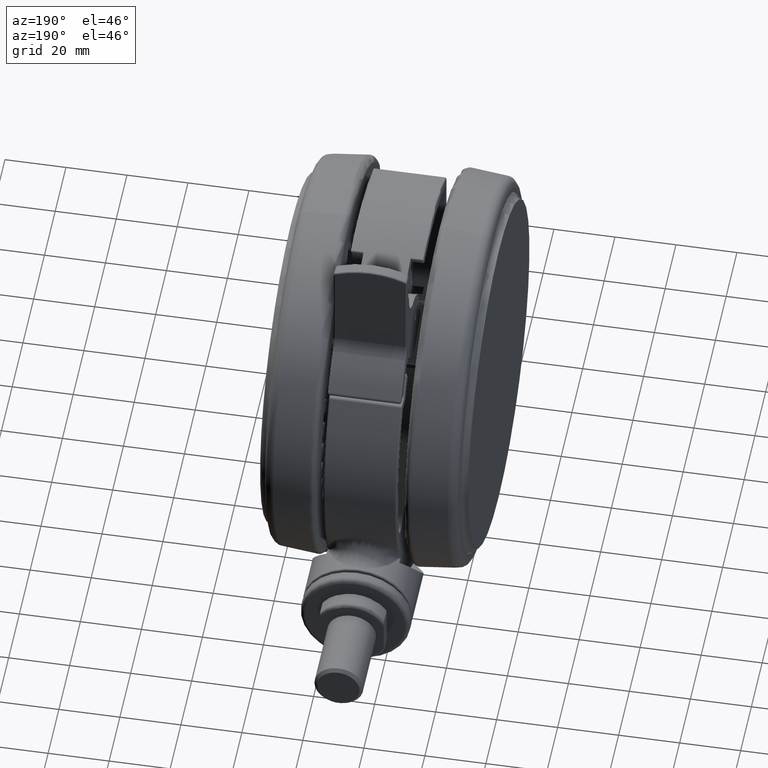
[diagram: clean part render]
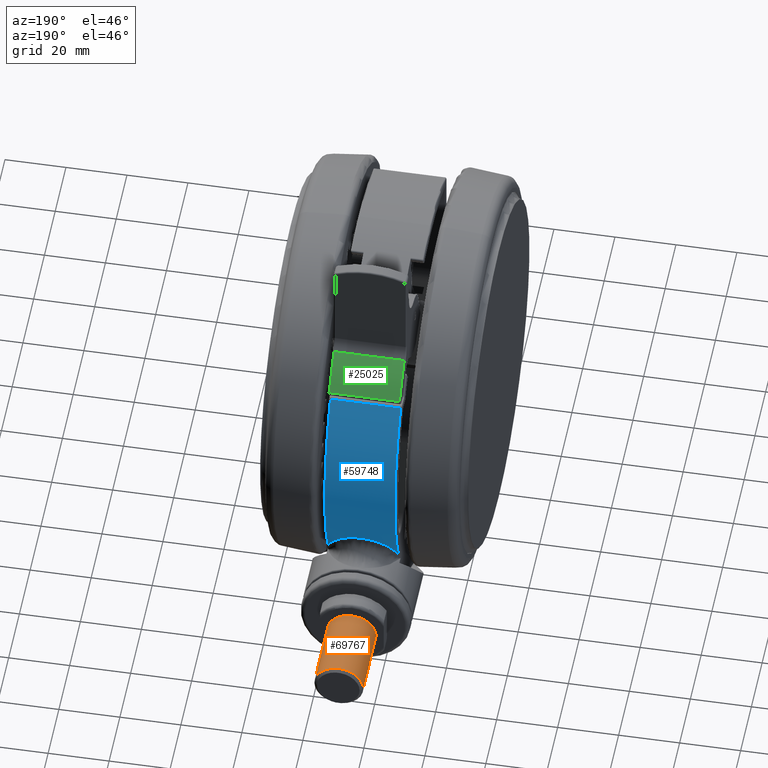
[diagram: same view with three faces highlighted in distinct colors, each labeled with its STEP entity id]
A machine part, auxiliary view with three faces highlighted in distinct colors.
Their STEP definitions:

[orange] entity #69767 — the highlighted cylindrical surface (edge-blend (fillet) strip) has radius 8 mm, axis along (0, 1, 0).
#951 = CARTESIAN_POINT ( 'NONE',  ( 45.00000000000000000, 79.99999999999998600, -42.10000000000006500 ) ) ;
#4167 = DIRECTION ( 'NONE',  ( -1.146315124338079900E-016, 1.000000000000000000, 0.0000000000000000000 ) ) ;
#7371 = EDGE_CURVE ( 'NONE', #54713, #21270, #38706, .T. ) ;
#9606 = VECTOR ( 'NONE', #63421, 1000.000000000000000 ) ;
#10160 = ORIENTED_EDGE ( 'NONE', *, *, #77631, .F. ) ;
#10475 = ORIENTED_EDGE ( 'NONE', *, *, #7371, .T. ) ;
#12645 = LINE ( 'NONE', #24308, #31342 ) ;
#14196 = CARTESIAN_POINT ( 'NONE',  ( 45.00000000000000000, 79.99999999999998600, -34.10000000000006500 ) ) ;
#16465 = AXIS2_PLACEMENT_3D ( 'NONE', #55629, #18010, #61985 ) ;
#16809 = CARTESIAN_POINT ( 'NONE',  ( 45.00000000000000000, 79.99999999999998600, -34.10000000000006500 ) ) ;
#18010 = DIRECTION ( 'NONE',  ( 1.146315124338079900E-016, -1.000000000000000000, 0.0000000000000000000 ) ) ;
#18689 = EDGE_CURVE ( 'NONE', #46795, #54713, #26293, .T. ) ;
#18965 = AXIS2_PLACEMENT_3D ( 'NONE', #16809, #4167, #79402 ) ;
#19462 = CARTESIAN_POINT ( 'NONE',  ( 45.00000000000000000, 79.99999999999998600, -26.10000000000006900 ) ) ;
#20493 = DIRECTION ( 'NONE',  ( 0.0000000000000000000, 0.0000000000000000000, 1.000000000000000000 ) ) ;
#21270 = VERTEX_POINT ( 'NONE', #61968 ) ;
#22998 = CARTESIAN_POINT ( 'NONE',  ( 45.00000000000000000, 79.99999999999998600, -26.10000000000006900 ) ) ;
#24308 = CARTESIAN_POINT ( 'NONE',  ( 45.00000000000000000, 79.99999999999998600, -42.10000000000006500 ) ) ;
#26293 = LINE ( 'NONE', #19462, #9606 ) ;
#26489 = CYLINDRICAL_SURFACE ( 'NONE', #18965, 8.000000000000000000 ) ;
#28938 = EDGE_CURVE ( 'NONE', #46795, #73681, #34399, .T. ) ;
#30073 = CARTESIAN_POINT ( 'NONE',  ( 45.00000000000000000, 104.0000000000000000, -26.10000000000006900 ) ) ;
#31342 = VECTOR ( 'NONE', #68212, 1000.000000000000000 ) ;
#31930 = ORIENTED_EDGE ( 'NONE', *, *, #28938, .F. ) ;
#34399 = CIRCLE ( 'NONE', #59120, 8.000000000000000000 ) ;
#38706 = CIRCLE ( 'NONE', #16465, 8.000000000000000000 ) ;
#41595 = EDGE_LOOP ( 'NONE', ( #31930, #60888, #10475, #10160 ) ) ;
#46795 = VERTEX_POINT ( 'NONE', #22998 ) ;
#49108 = FACE_OUTER_BOUND ( 'NONE', #41595, .T. ) ;
#54713 = VERTEX_POINT ( 'NONE', #30073 ) ;
#55629 = CARTESIAN_POINT ( 'NONE',  ( 45.00000000000000000, 104.0000000000000000, -34.10000000000006500 ) ) ;
#58141 = DIRECTION ( 'NONE',  ( 1.146315124338079900E-016, -1.000000000000000000, 0.0000000000000000000 ) ) ;
#59120 = AXIS2_PLACEMENT_3D ( 'NONE', #14196, #58141, #20493 ) ;
#60888 = ORIENTED_EDGE ( 'NONE', *, *, #18689, .T. ) ;
#61968 = CARTESIAN_POINT ( 'NONE',  ( 45.00000000000000000, 104.0000000000000000, -42.10000000000006500 ) ) ;
#61985 = DIRECTION ( 'NONE',  ( 0.0000000000000000000, 0.0000000000000000000, 1.000000000000000000 ) ) ;
#63421 = DIRECTION ( 'NONE',  ( -1.146315124338079900E-016, 1.000000000000000000, 0.0000000000000000000 ) ) ;
#68212 = DIRECTION ( 'NONE',  ( -1.146315124338079900E-016, 1.000000000000000000, 0.0000000000000000000 ) ) ;
#69767 = ADVANCED_FACE ( 'NONE', ( #49108 ), #26489, .T. ) ;
#73681 = VERTEX_POINT ( 'NONE', #951 ) ;
#77631 = EDGE_CURVE ( 'NONE', #73681, #21270, #12645, .T. ) ;
#79402 = DIRECTION ( 'NONE',  ( 0.0000000000000000000, 0.0000000000000000000, -1.000000000000000000 ) ) ;

[blue] entity #59748 — the highlighted cylindrical surface (partial cylindrical patch) has radius 65 mm, axis along (-1, 0, 0).
#58 = CARTESIAN_POINT ( 'NONE',  ( 22.25067191259084300, 61.07446460647479100, -26.13959871664137000 ) ) ;
#336 = CARTESIAN_POINT ( 'NONE',  ( 19.53446099107078700, 61.99526671427586400, -31.40211027222164500 ) ) ;
#609 = CARTESIAN_POINT ( 'NONE',  ( 20.17088575764760300, 61.79124011712932000, -38.72578671634456500 ) ) ;
#885 = CARTESIAN_POINT ( 'NONE',  ( 23.67213790501916600, 60.53632407365591200, -43.37910290245623900 ) ) ;
#1166 = CARTESIAN_POINT ( 'NONE',  ( 27.42267506145585200, 58.93218258227798100, -45.43470148881331000 ) ) ;
#1331 = CIRCLE ( 'NONE', #28591, 65.00000000000000000 ) ;
#6071 = FACE_OUTER_BOUND ( 'NONE', #24300, .T. ) ;
#6146 = CARTESIAN_POINT ( 'NONE',  ( 27.34814487594782800, 58.96676503255361000, -22.77986088566700600 ) ) ;
#6410 = CARTESIAN_POINT ( 'NONE',  ( 21.64952585980088200, 61.28873263384547000, -26.89637461909766400 ) ) ;
#6675 = CARTESIAN_POINT ( 'NONE',  ( 19.28304060778433600, 62.07398556647676500, -32.75484630788786700 ) ) ;
#6958 = CARTESIAN_POINT ( 'NONE',  ( 20.60295828151467000, 61.64858069595445800, -39.64227792800731000 ) ) ;
#7224 = CARTESIAN_POINT ( 'NONE',  ( 24.42173400849698300, 60.23835657775620700, -43.94026350348315900 ) ) ;
#7301 = CARTESIAN_POINT ( 'NONE',  ( -35.54687500000000000, 54.41892756876389800, -22.60000000000006900 ) ) ;
#7492 = CARTESIAN_POINT ( 'NONE',  ( 27.82032428552507900, 58.74565176112127300, -45.56163820931893600 ) ) ;
#7730 = DIRECTION ( 'NONE',  ( -1.000000000000000000, 0.0000000000000000000, 0.0000000000000000000 ) ) ;
#8426 = CARTESIAN_POINT ( 'NONE',  ( -35.54687500000000000, 54.41892756876389800, -45.60000000000007200 ) ) ;
#12474 = CARTESIAN_POINT ( 'NONE',  ( 26.89241669005522400, 59.17712756015789200, -22.93883237918613500 ) ) ;
#12751 = CARTESIAN_POINT ( 'NONE',  ( 21.16972210647392700, 61.45657141387963700, -27.56596694341793000 ) ) ;
#13013 = CARTESIAN_POINT ( 'NONE',  ( 19.22636675363504800, 62.09143920503182600, -34.78746132980300100 ) ) ;
#13279 = CARTESIAN_POINT ( 'NONE',  ( 21.10159326407777400, 61.47976129959460000, -40.50638821008343600 ) ) ;
#13552 = CARTESIAN_POINT ( 'NONE',  ( 24.94913981047005800, 60.02134493640235000, -44.27811818790105000 ) ) ;
#13855 = ORIENTED_EDGE ( 'NONE', *, *, #50961, .T. ) ;
#14342 = DIRECTION ( 'NONE',  ( 0.0000000000000000000, 0.0000000000000000000, -1.000000000000000000 ) ) ;
#17516 = CARTESIAN_POINT ( 'NONE',  ( 0.0000000000000000000, 0.0000000000000000000, -45.60000000000007200 ) ) ;
#17578 = LINE ( 'NONE', #34711, #63763 ) ;
#18517 = CARTESIAN_POINT ( 'NONE',  ( 27.79232637209798500, 58.75890123488316200, -22.63798909152732700 ) ) ;
#18773 = CARTESIAN_POINT ( 'NONE',  ( 25.69817246601970600, 59.70742912799946100, -23.46208229475553600 ) ) ;
#19045 = CARTESIAN_POINT ( 'NONE',  ( 20.66972691797241500, 61.62604639292821000, -28.41821584794706700 ) ) ;
#19311 = CARTESIAN_POINT ( 'NONE',  ( 19.43650582107547100, 62.02598830639885800, -36.30163135562678200 ) ) ;
#19588 = CARTESIAN_POINT ( 'NONE',  ( 21.47414799631831200, 61.35040148085507600, -41.05276035806832600 ) ) ;
#19856 = CARTESIAN_POINT ( 'NONE',  ( 25.21985554605142000, 59.90796404605941900, -44.43807676528508200 ) ) ;
#20469 = ORIENTED_EDGE ( 'NONE', *, *, #36097, .T. ) ;
#23893 = DIRECTION ( 'NONE',  ( 1.000000000000000000, 0.0000000000000000000, 0.0000000000000000000 ) ) ;
#24300 = EDGE_LOOP ( 'NONE', ( #37077, #13855, #43219, #20469 ) ) ;
#25128 = CARTESIAN_POINT ( 'NONE',  ( 24.38946645385690500, 60.25139982984629200, -24.26384737465338800 ) ) ;
#25400 = CARTESIAN_POINT ( 'NONE',  ( 20.44288935957102300, 61.70165689065495900, -28.85910942607371200 ) ) ;
#25663 = CARTESIAN_POINT ( 'NONE',  ( 19.52615598186860500, 61.99781944255990900, -36.72101404127205600 ) ) ;
#25774 = CARTESIAN_POINT ( 'NONE',  ( 27.95437384687145200, 58.68178101843090400, -45.60001317750182900 ) ) ;
#25922 = CARTESIAN_POINT ( 'NONE',  ( 21.76791565473871500, 61.24679039606800800, -41.44564791617381200 ) ) ;
#26188 = CARTESIAN_POINT ( 'NONE',  ( 25.68911813592593100, 59.70913800842981800, -44.70101322627728300 ) ) ;
#27097 = CARTESIAN_POINT ( 'NONE',  ( 27.92590306755449700, 58.69533635111779500, -22.59998678528584600 ) ) ;
#27855 = DIRECTION ( 'NONE',  ( -0.0000000000000000000, -0.0000000000000000000, -1.000000000000000000 ) ) ;
#28591 = AXIS2_PLACEMENT_3D ( 'NONE', #65461, #27855, #71780 ) ;
#30223 = EDGE_CURVE ( 'NONE', #47435, #73666, #17578, .T. ) ;
#31446 = CARTESIAN_POINT ( 'NONE',  ( 23.64653828361601000, 60.54676731015368300, -24.82376520894524300 ) ) ;
#31723 = CARTESIAN_POINT ( 'NONE',  ( 20.16148068567649100, 61.79430745747500700, -29.46952685547477200 ) ) ;
#31995 = CARTESIAN_POINT ( 'NONE',  ( 19.58523465069505700, 61.97918219874328100, -36.96602451009528100 ) ) ;
#32057 = VERTEX_POINT ( 'NONE', #27097 ) ;
#32261 = CARTESIAN_POINT ( 'NONE',  ( 22.71460384025984800, 60.90410585044376300, -42.54105573440799000 ) ) ;
#32536 = CARTESIAN_POINT ( 'NONE',  ( 26.86298689317154500, 59.19017779428045100, -45.23463577216099200 ) ) ;
#34711 = CARTESIAN_POINT ( 'NONE',  ( -35.54687500000000000, 54.41892756876389800, -22.10000000000006900 ) ) ;
#35651 = CYLINDRICAL_SURFACE ( 'NONE', #77197, 65.00000000000000000 ) ;
#36097 = EDGE_CURVE ( 'NONE', #73666, #32057, #1331, .T. ) ;
#37077 = ORIENTED_EDGE ( 'NONE', *, *, #80888, .T. ) ;
#37520 = CARTESIAN_POINT ( 'NONE',  ( 27.44541606508240500, 58.92157019464794100, -22.74730794547513200 ) ) ;
#37790 = CARTESIAN_POINT ( 'NONE',  ( 22.69148590163013400, 60.91271055391931800, -25.67161477966031700 ) ) ;
#38065 = CARTESIAN_POINT ( 'NONE',  ( 19.70776321033785900, 61.94039336677740000, -30.74381804980476600 ) ) ;
#38333 = CARTESIAN_POINT ( 'NONE',  ( 19.91594499075797800, 61.87404756975024600, -38.09847191439211400 ) ) ;
#38606 = CARTESIAN_POINT ( 'NONE',  ( 23.43163832220241400, 60.62981915594368600, -43.17996524113615900 ) ) ;
#38877 = CARTESIAN_POINT ( 'NONE',  ( 27.29120315660091100, 58.99318165434271300, -45.38961938130581300 ) ) ;
#43219 = ORIENTED_EDGE ( 'NONE', *, *, #30223, .T. ) ;
#43816 = CARTESIAN_POINT ( 'NONE',  ( 27.36336916197056000, 58.95970111128236400, -22.77472115942863700 ) ) ;
#44073 = CARTESIAN_POINT ( 'NONE',  ( 21.74756569991431800, 61.25401864652220500, -26.76867654488429300 ) ) ;
#44349 = CARTESIAN_POINT ( 'NONE',  ( 19.46034929420567700, 62.01853465009203600, -31.74024620383640600 ) ) ;
#44618 = CARTESIAN_POINT ( 'NONE',  ( 20.45259772501639300, 61.69856751788859100, -39.34500890495279200 ) ) ;
#44890 = CARTESIAN_POINT ( 'NONE',  ( 24.03853599999608200, 60.39264876353387700, -43.67055891784971100 ) ) ;
#45162 = CARTESIAN_POINT ( 'NONE',  ( 27.62053252951432800, 58.83998178103006900, -45.50066272967117700 ) ) ;
#47435 = VERTEX_POINT ( 'NONE', #8426 ) ;
#48841 = VERTEX_POINT ( 'NONE', #25774 ) ;
#50103 = CARTESIAN_POINT ( 'NONE',  ( 27.25667273886927300, 59.00915434209894500, -22.81098914732393400 ) ) ;
#50376 = CARTESIAN_POINT ( 'NONE',  ( 21.45418476367681700, 61.35738483624606900, -27.16199617994645600 ) ) ;
#50637 = CARTESIAN_POINT ( 'NONE',  ( 19.22436531436573000, 62.09205890737770500, -33.43434025363112000 ) ) ;
#50900 = CARTESIAN_POINT ( 'NONE',  ( 20.92787093554782300, 61.53904134677835500, -40.22387728630288000 ) ) ;
#50961 = EDGE_CURVE ( 'NONE', #48841, #47435, #77641, .T. ) ;
#51184 = CARTESIAN_POINT ( 'NONE',  ( 24.81591559312336100, 60.07653874074011900, -44.19546713594325400 ) ) ;
#51329 = AXIS2_PLACEMENT_3D ( 'NONE', #17516, #61498, #23893 ) ;
#51445 = CARTESIAN_POINT ( 'NONE',  ( 27.95437384687145200, 58.68178101843090400, -45.60001317750182900 ) ) ;
#52106 = B_SPLINE_CURVE_WITH_KNOTS ( 'NONE', 3,
 ( #68770, #18517, #75067, #37520, #81367, #43816, #6146, #50103, #12474, #56420, #18773, #62730, #25128, #69031, #31446, #75331, #37790, #58, #44073, #6410, #50376, #12751, #56672, #19045, #62997, #25400, #69285, #31723, #75598, #38065, #336, #44349, #6675, #50637, #13013, #56953, #19311, #63270, #25663, #69561, #31995, #75881, #38333, #609, #44618, #6958, #50900, #13279, #57227, #19588, #63536, #25922, #69848, #32261, #76152, #38606, #885, #44890, #7224, #51184, #13552, #57501, #19856, #63810, #26188, #70124, #32536, #76423, #38877, #1166, #45162, #7492, #51445 ),
 .UNSPECIFIED., .F., .F.,
 ( 4, 1, 1, 2, 2, 1, 2, 2, 2, 2, 2, 2, 1, 2, 2, 2, 1, 2, 2, 2, 2, 2, 2, 1, 1, 2, 2, 2, 2, 2, 2, 2, 1, 2, 2, 2, 1, 1, 2, 2, 1, 4 ),
 ( 0.1067419510894592100, 0.1190486621802158000, 0.1221253399529049600, 0.1236636788392495700, 0.1252020177255941900, 0.1313553732709725800, 0.1559687954524863800, 0.2051956398155139700, 0.2298090619970276100, 0.2544224841785412400, 0.3036493285415684500, 0.3159560396323252100, 0.3282627507230819200, 0.3528761729045951600, 0.3651828839953517600, 0.3774895950861083000, 0.4021030172676214900, 0.4267164394491346800, 0.4513298616306480900, 0.5005567059936749700, 0.5497835503567017900, 0.5620902614474584400, 0.5682436169928367600, 0.5743969725382150900, 0.5990103947197285000, 0.6236238169012419100, 0.6482372390827554300, 0.6728506612642688500, 0.6851573723550256100, 0.6974640834457823700, 0.7466909278088093000, 0.7589976388995658400, 0.7713043499903226000, 0.7959177721718361200, 0.8082244832625930000, 0.8143778388079716500, 0.8205311943533503100, 0.8451446165348656100, 0.8697580387163808000, 0.8759113942617594600, 0.8820647498071380000, 0.8943714608978949900 ),
 .UNSPECIFIED. ) ;
#56420 = CARTESIAN_POINT ( 'NONE',  ( 26.53638836899736500, 59.33728492795938100, -23.08332653722088100 ) ) ;
#56672 = CARTESIAN_POINT ( 'NONE',  ( 20.91104773475947800, 61.54475527762041800, -27.98655297348422600 ) ) ;
#56953 = CARTESIAN_POINT ( 'NONE',  ( 19.28682181034139700, 62.07281407466353300, -35.46171010078335700 ) ) ;
#57227 = CARTESIAN_POINT ( 'NONE',  ( 21.37891699338514000, 61.38364179587569700, -40.91772146270345400 ) ) ;
#57501 = CARTESIAN_POINT ( 'NONE',  ( 25.15169236763343400, 59.93661424670376900, -44.39846952754439300 ) ) ;
#59662 = DIRECTION ( 'NONE',  ( -0.0000000000000000000, -0.0000000000000000000, 1.000000000000000000 ) ) ;
#59748 = ADVANCED_FACE ( 'NONE', ( #6071 ), #35651, .T. ) ;
#61498 = DIRECTION ( 'NONE',  ( 0.0000000000000000000, 0.0000000000000000000, 1.000000000000000000 ) ) ;
#62730 = CARTESIAN_POINT ( 'NONE',  ( 25.16104298967593400, 59.93522284192272300, -23.75721250411366700 ) ) ;
#62997 = CARTESIAN_POINT ( 'NONE',  ( 20.59217860871009600, 61.65199403560887200, -28.56394961350077800 ) ) ;
#63270 = CARTESIAN_POINT ( 'NONE',  ( 19.47014680937347500, 62.01544094387734400, -36.46947112115134400 ) ) ;
#63536 = CARTESIAN_POINT ( 'NONE',  ( 21.67015956479912500, 61.28144073425520600, -41.31869377111444700 ) ) ;
#63763 = VECTOR ( 'NONE', #59662, 1000.000000000000000 ) ;
#63810 = CARTESIAN_POINT ( 'NONE',  ( 25.35360681897378400, 59.85148194636899900, -44.51417581782972400 ) ) ;
#65461 = CARTESIAN_POINT ( 'NONE',  ( 0.0000000000000000000, 0.0000000000000000000, -22.60000000000006900 ) ) ;
#68770 = CARTESIAN_POINT ( 'NONE',  ( 27.92590306755449700, 58.69533635111779500, -22.59998678528584600 ) ) ;
#69031 = CARTESIAN_POINT ( 'NONE',  ( 24.13795755566093200, 60.35253772253094000, -24.44338225758372500 ) ) ;
#69285 = CARTESIAN_POINT ( 'NONE',  ( 20.37157209290337400, 61.72523377728598600, -29.00752762653992900 ) ) ;
#69561 = CARTESIAN_POINT ( 'NONE',  ( 19.54512131529279600, 61.99184361767516500, -36.80211477293095600 ) ) ;
#69848 = CARTESIAN_POINT ( 'NONE',  ( 22.27253549177076800, 61.06650419923458600, -42.07451242591226800 ) ) ;
#70124 = CARTESIAN_POINT ( 'NONE',  ( 26.30316968427618500, 59.44255489925022600, -45.00662855525664000 ) ) ;
#71780 = DIRECTION ( 'NONE',  ( 1.000000000000000000, -3.552713678800500900E-015, 0.0000000000000000000 ) ) ;
#73666 = VERTEX_POINT ( 'NONE', #7301 ) ;
#75067 = CARTESIAN_POINT ( 'NONE',  ( 27.62642517994137100, 58.83713431076597500, -22.68826808428833200 ) ) ;
#75331 = CARTESIAN_POINT ( 'NONE',  ( 23.40862095568921600, 60.63911217040720900, -25.02255636260865000 ) ) ;
#75598 = CARTESIAN_POINT ( 'NONE',  ( 19.90790737072405400, 61.87663068302234100, -30.09609914001382700 ) ) ;
#75881 = CARTESIAN_POINT ( 'NONE',  ( 19.68975077168373400, 61.94613803237425000, -37.37453438217104900 ) ) ;
#76152 = CARTESIAN_POINT ( 'NONE',  ( 23.31383103802730600, 60.67521521096313100, -43.07854949590887400 ) ) ;
#76423 = CARTESIAN_POINT ( 'NONE',  ( 27.21710659369537700, 59.02741044994478900, -45.36349939107010000 ) ) ;
#77197 = AXIS2_PLACEMENT_3D ( 'NONE', #77221, #14342, #7730 ) ;
#77221 = CARTESIAN_POINT ( 'NONE',  ( 0.0000000000000000000, 0.0000000000000000000, -22.10000000000006900 ) ) ;
#77641 = CIRCLE ( 'NONE', #51329, 65.00000000000000000 ) ;
#80888 = EDGE_CURVE ( 'NONE', #32057, #48841, #52106, .T. ) ;
#81367 = CARTESIAN_POINT ( 'NONE',  ( 27.39617166329022500, 58.94446628159057900, -22.76371515054742600 ) ) ;

[green] entity #25025 — the highlighted cylindrical surface (partial cylindrical patch) has radius 65.5 mm, axis along (1, 0, 0).
#1923 = DIRECTION ( 'NONE',  ( 0.9999747109993002400, 0.007111776280644171300, 0.0000000000000000000 ) ) ;
#2602 = CIRCLE ( 'NONE', #51575, 65.50000000000000000 ) ;
#8350 = AXIS2_PLACEMENT_3D ( 'NONE', #66307, #72637, #22422 ) ;
#8794 = EDGE_LOOP ( 'NONE', ( #22687, #43100, #23592, #28045 ) ) ;
#9107 = CARTESIAN_POINT ( 'NONE',  ( -37.76858919079362000, 53.73959003884027700, -45.60000000000007200 ) ) ;
#11582 = CIRCLE ( 'NONE', #70040, 65.50000000000000000 ) ;
#14828 = VERTEX_POINT ( 'NONE', #41798 ) ;
#19664 = LINE ( 'NONE', #9107, #34465 ) ;
#20207 = FACE_OUTER_BOUND ( 'NONE', #8794, .T. ) ;
#21769 = DIRECTION ( 'NONE',  ( -0.0000000000000000000, -0.0000000000000000000, -1.000000000000000000 ) ) ;
#21939 = DIRECTION ( 'NONE',  ( -0.0000000000000000000, -0.0000000000000000000, -1.000000000000000000 ) ) ;
#22422 = DIRECTION ( 'NONE',  ( 0.9999747109993002400, 0.007111776280644171300, 0.0000000000000000000 ) ) ;
#22687 = ORIENTED_EDGE ( 'NONE', *, *, #42742, .T. ) ;
#23050 = VERTEX_POINT ( 'NONE', #80472 ) ;
#23096 = VERTEX_POINT ( 'NONE', #62633 ) ;
#23592 = ORIENTED_EDGE ( 'NONE', *, *, #46862, .T. ) ;
#25025 = ADVANCED_FACE ( 'NONE', ( #20207 ), #66416, .T. ) ;
#28045 = ORIENTED_EDGE ( 'NONE', *, *, #32453, .T. ) ;
#30325 = CARTESIAN_POINT ( 'NONE',  ( -47.83254974436888300, 44.90451891856242400, -45.10000000000007200 ) ) ;
#32453 = EDGE_CURVE ( 'NONE', #79311, #14828, #55886, .T. ) ;
#34465 = VECTOR ( 'NONE', #21769, 1000.000000000000000 ) ;
#39636 = DIRECTION ( 'NONE',  ( 0.0000000000000000000, 0.0000000000000000000, 1.000000000000000000 ) ) ;
#41798 = CARTESIAN_POINT ( 'NONE',  ( -47.83254974436888300, 44.90451891856242400, -22.10000000000006900 ) ) ;
#42742 = EDGE_CURVE ( 'NONE', #14828, #23096, #11582, .T. ) ;
#43100 = ORIENTED_EDGE ( 'NONE', *, *, #55099, .T. ) ;
#46862 = EDGE_CURVE ( 'NONE', #23050, #79311, #2602, .T. ) ;
#50615 = CARTESIAN_POINT ( 'NONE',  ( -47.83254974436888300, 44.90451891856242400, -45.60000000000007200 ) ) ;
#51575 = AXIS2_PLACEMENT_3D ( 'NONE', #77162, #39636, #1923 ) ;
#55099 = EDGE_CURVE ( 'NONE', #23096, #23050, #19664, .T. ) ;
#55886 = LINE ( 'NONE', #50615, #68640 ) ;
#56926 = DIRECTION ( 'NONE',  ( 0.0000000000000000000, 0.0000000000000000000, 1.000000000000000000 ) ) ;
#59530 = CARTESIAN_POINT ( 'NONE',  ( 0.1856606812446134900, 0.3567752324731381400, -22.10000000000006900 ) ) ;
#62633 = CARTESIAN_POINT ( 'NONE',  ( -37.76858919079359800, 53.73959003884027700, -22.10000000000006900 ) ) ;
#65837 = DIRECTION ( 'NONE',  ( 0.9999747109993002400, 0.007111776280644171300, 0.0000000000000000000 ) ) ;
#66307 = CARTESIAN_POINT ( 'NONE',  ( 0.1856606812446134900, 0.3567752324731381400, -45.60000000000007200 ) ) ;
#66416 = CYLINDRICAL_SURFACE ( 'NONE', #8350, 65.50000000000000000 ) ;
#68640 = VECTOR ( 'NONE', #56926, 1000.000000000000000 ) ;
#70040 = AXIS2_PLACEMENT_3D ( 'NONE', #59530, #21939, #65837 ) ;
#72637 = DIRECTION ( 'NONE',  ( 0.0000000000000000000, 0.0000000000000000000, 1.000000000000000000 ) ) ;
#77162 = CARTESIAN_POINT ( 'NONE',  ( 0.1856606812446134900, 0.3567752324731381400, -45.10000000000007200 ) ) ;
#79311 = VERTEX_POINT ( 'NONE', #30325 ) ;
#80472 = CARTESIAN_POINT ( 'NONE',  ( -37.76858919079359800, 53.73959003884027700, -45.10000000000007200 ) ) ;